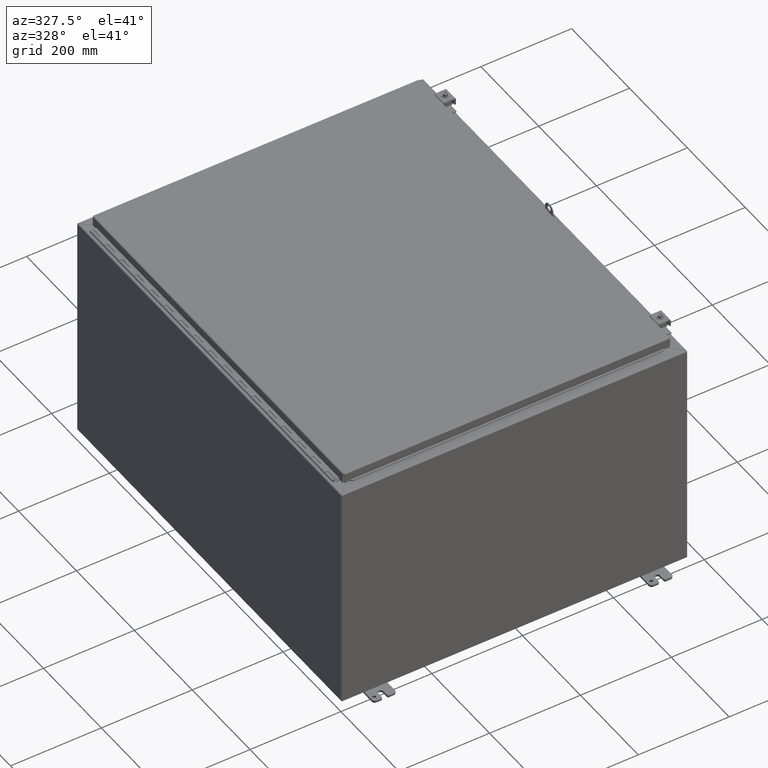
[diagram: clean part render]
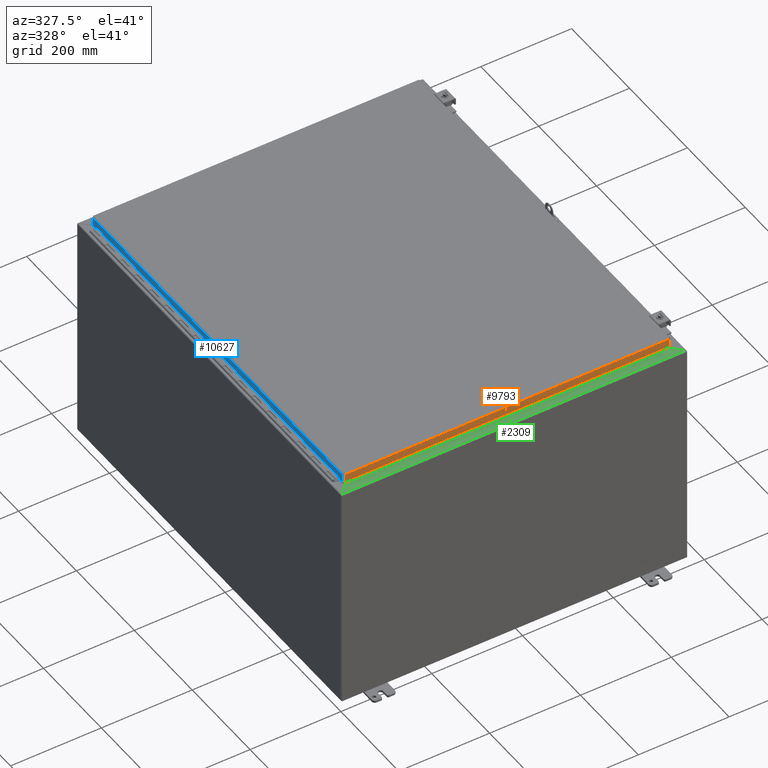
[diagram: same view with three faces highlighted in distinct colors, each labeled with its STEP entity id]
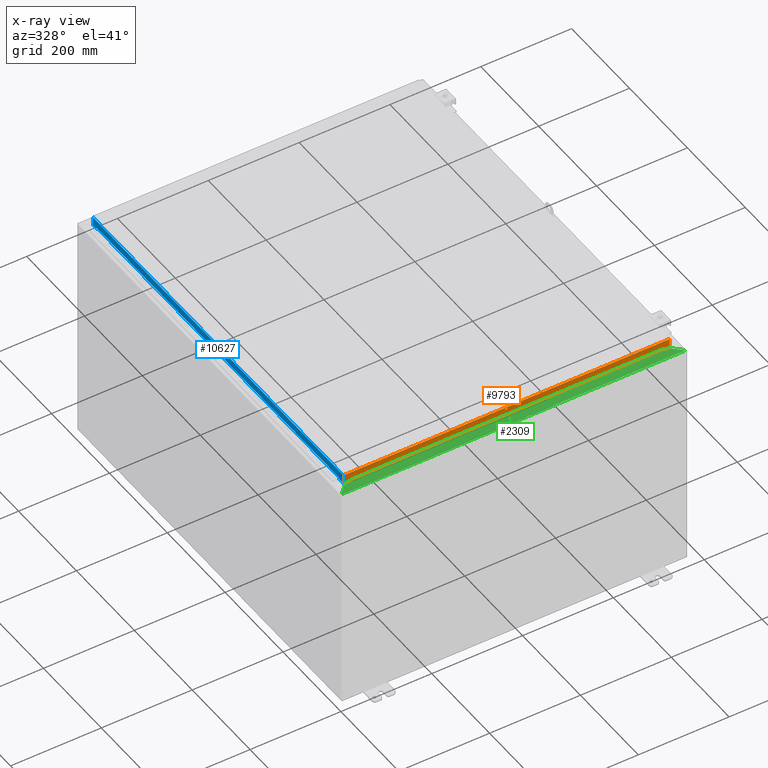
[diagram: x-ray of the same camera — body ghosted, the three highlighted faces saturated]
A machine part, auxiliary view with three faces highlighted in distinct colors.
The next image is the same camera in x-ray (body ghosted, the three faces saturated) — at least one of them is partly hidden behind the body in this view.
Their STEP definitions:

[orange] entity #9793 — the highlighted planar face has unit normal (-0, 1, -0).
#8678=CARTESIAN_POINT('',(-13.602451456543987,17.093750000000043,0.769749999999993));
#8679=VERTEX_POINT('',#8678);
#8704=CARTESIAN_POINT('',(13.602451456543964,17.093750000000046,0.769749999999993));
#8705=VERTEX_POINT('',#8704);
#8760=CARTESIAN_POINT('',(-13.602451456543985,17.093750000000043,0.769749999999993));
#8761=DIRECTION('',(1.0,0.0,0.0));
#8762=VECTOR('',#8761,27.204902913087949);
#8763=LINE('',#8760,#8762);
#8764=EDGE_CURVE('',#8679,#8705,#8763,.T.);
#9516=CARTESIAN_POINT('',(13.602451456543964,17.093750000000046,0.769549999999993));
#9517=VERTEX_POINT('',#9516);
#9524=CARTESIAN_POINT('',(13.602451456543964,17.093750000000046,0.769749999999993));
#9525=DIRECTION('',(0.0,0.0,-1.0));
#9526=VECTOR('',#9525,0.0002);
#9527=LINE('',#9524,#9526);
#9528=EDGE_CURVE('',#8705,#9517,#9527,.T.);
#9548=CARTESIAN_POINT('',(13.602651456543965,17.093750000000053,0.874999999999994));
#9549=VERTEX_POINT('',#9548);
#9556=CARTESIAN_POINT('',(13.602651456543965,17.093750000000046,0.769549999999993));
#9557=VERTEX_POINT('',#9556);
#9558=CARTESIAN_POINT('',(13.602651456543965,17.093750000000046,0.769549999999993));
#9559=DIRECTION('',(0.0,0.0,1.0));
#9560=VECTOR('',#9559,0.105450000000001);
#9561=LINE('',#9558,#9560);
#9562=EDGE_CURVE('',#9557,#9549,#9561,.T.);
#9585=CARTESIAN_POINT('',(13.602451456543964,17.093750000000043,0.769549999999993));
#9586=DIRECTION('',(1.0,0.0,0.0));
#9587=VECTOR('',#9586,0.000200000000003);
#9588=LINE('',#9585,#9587);
#9589=EDGE_CURVE('',#9517,#9557,#9588,.T.);
#9675=CARTESIAN_POINT('',(-13.602651456543988,17.093750000000043,0.769549999999993));
#9676=VERTEX_POINT('',#9675);
#9683=CARTESIAN_POINT('',(-13.602651456543988,17.09375000000005,0.874999999999994));
#9684=VERTEX_POINT('',#9683);
#9685=CARTESIAN_POINT('',(-13.602651456543988,17.093750000000053,0.874999999999994));
#9686=DIRECTION('',(0.0,0.0,-1.0));
#9687=VECTOR('',#9686,0.105450000000001);
#9688=LINE('',#9685,#9687);
#9689=EDGE_CURVE('',#9684,#9676,#9688,.T.);
#9706=CARTESIAN_POINT('',(-13.602451456543987,17.093750000000043,0.769549999999993));
#9707=VERTEX_POINT('',#9706);
#9708=CARTESIAN_POINT('',(-13.602451456543987,17.093750000000046,0.769549999999993));
#9709=DIRECTION('',(0.0,0.0,1.0));
#9710=VECTOR('',#9709,0.0002);
#9711=LINE('',#9708,#9710);
#9712=EDGE_CURVE('',#9707,#8679,#9711,.T.);
#9731=CARTESIAN_POINT('',(-13.602651456543988,17.093750000000043,0.769549999999993));
#9732=DIRECTION('',(1.0,0.0,0.0));
#9733=VECTOR('',#9732,0.000200000000001);
#9734=LINE('',#9731,#9733);
#9735=EDGE_CURVE('',#9676,#9707,#9734,.T.);
#9741=CARTESIAN_POINT('',(-0.046950708161296,17.093750000000025,0.440146161915871));
#9742=DIRECTION('',(0.0,-1.0,0.0));
#9743=DIRECTION('',(1.0,0.0,0.0));
#9744=AXIS2_PLACEMENT_3D('',#9741,#9742,#9743);
#9745=PLANE('',#9744);
#9746=ORIENTED_EDGE('',*,*,#9562,.T.);
#9747=CARTESIAN_POINT('',(14.102451456543966,17.093750000000053,0.874999999999993));
#9748=VERTEX_POINT('',#9747);
#9749=CARTESIAN_POINT('',(14.102451456543966,17.093750000000053,0.874999999999993));
#9750=DIRECTION('',(-1.0,0.0,0.0));
#9751=VECTOR('',#9750,0.4998);
#9752=LINE('',#9749,#9751);
#9753=EDGE_CURVE('',#9748,#9549,#9752,.T.);
#9754=ORIENTED_EDGE('',*,*,#9753,.F.);
#9755=CARTESIAN_POINT('',(14.102451456543966,17.093750000000004,0.105249999999996));
#9756=VERTEX_POINT('',#9755);
#9757=CARTESIAN_POINT('',(14.102451456543966,17.093750000000004,0.105249999999996));
#9758=DIRECTION('',(0.0,0.0,1.0));
#9759=VECTOR('',#9758,0.769749999999998);
#9760=LINE('',#9757,#9759);
#9761=EDGE_CURVE('',#9756,#9748,#9760,.T.);
#9762=ORIENTED_EDGE('',*,*,#9761,.F.);
#9763=CARTESIAN_POINT('',(-14.102451456543951,17.093750000000004,0.105249999999994));
#9764=VERTEX_POINT('',#9763);
#9765=CARTESIAN_POINT('',(14.102451456543962,17.093750000000004,0.10524999999999));
#9766=DIRECTION('',(-1.0,0.0,0.0));
#9767=VECTOR('',#9766,28.204902913087913);
#9768=LINE('',#9765,#9767);
#9769=EDGE_CURVE('',#9756,#9764,#9768,.T.);
#9770=ORIENTED_EDGE('',*,*,#9769,.T.);
#9771=CARTESIAN_POINT('',(-14.102451456543989,17.09375000000005,0.874999999999994));
#9772=VERTEX_POINT('',#9771);
#9773=CARTESIAN_POINT('',(-14.10245145654399,17.093750000000053,0.874999999999994));
#9774=DIRECTION('',(0.0,0.0,-1.0));
#9775=VECTOR('',#9774,0.76975);
#9776=LINE('',#9773,#9775);
#9777=EDGE_CURVE('',#9772,#9764,#9776,.T.);
#9778=ORIENTED_EDGE('',*,*,#9777,.F.);
#9779=CARTESIAN_POINT('',(-13.602651456543986,17.093750000000053,0.874999999999993));
#9780=DIRECTION('',(-1.0,0.0,0.0));
#9781=VECTOR('',#9780,0.4998);
#9782=LINE('',#9779,#9781);
#9783=EDGE_CURVE('',#9684,#9772,#9782,.T.);
#9784=ORIENTED_EDGE('',*,*,#9783,.F.);
#9785=ORIENTED_EDGE('',*,*,#9689,.T.);
#9786=ORIENTED_EDGE('',*,*,#9735,.T.);
#9787=ORIENTED_EDGE('',*,*,#9712,.T.);
#9788=ORIENTED_EDGE('',*,*,#8764,.T.);
#9789=ORIENTED_EDGE('',*,*,#9528,.T.);
#9790=ORIENTED_EDGE('',*,*,#9589,.T.);
#9791=EDGE_LOOP('',(#9746,#9754,#9762,#9770,#9778,#9784,#9785,#9786,#9787,#9788,#9789,#9790));
#9792=FACE_OUTER_BOUND('',#9791,.T.);
#9793=ADVANCED_FACE('',(#9792),#9745,.F.);

[blue] entity #10627 — the highlighted planar face has unit normal (1, 0, -0).
#7840=CARTESIAN_POINT('',(-14.187500000000027,16.515625000000011,0.749999999999995));
#7841=VERTEX_POINT('',#7840);
#7848=CARTESIAN_POINT('',(-14.187500000000025,-16.515624999999989,0.74999999999997));
#7849=VERTEX_POINT('',#7848);
#7850=CARTESIAN_POINT('',(-14.187500000000021,-16.515624999999993,0.74999999999997));
#7851=DIRECTION('',(0.0,1.0,0.0));
#7852=VECTOR('',#7851,33.03125);
#7853=LINE('',#7850,#7852);
#7854=EDGE_CURVE('',#7849,#7841,#7853,.T.);
#7879=CARTESIAN_POINT('',(-14.187500000000027,-16.515624999999989,0.874999999999972));
#7880=VERTEX_POINT('',#7879);
#7881=CARTESIAN_POINT('',(-14.187500000000025,-16.515624999999989,0.874999999999972));
#7882=DIRECTION('',(0.0,0.0,-1.0));
#7883=VECTOR('',#7882,0.125000000000003);
#7884=LINE('',#7881,#7883);
#7885=EDGE_CURVE('',#7880,#7849,#7884,.T.);
#7909=CARTESIAN_POINT('',(-14.187500000000032,16.515625000000011,0.874999999999993));
#7910=VERTEX_POINT('',#7909);
#7917=CARTESIAN_POINT('',(-14.187500000000025,16.515625000000011,0.749999999999995));
#7918=DIRECTION('',(0.0,0.0,1.0));
#7919=VECTOR('',#7918,0.124999999999998);
#7920=LINE('',#7917,#7919);
#7921=EDGE_CURVE('',#7841,#7910,#7920,.T.);
#7982=CARTESIAN_POINT('',(-14.187500000000025,-17.008701456544006,0.874999999999993));
#7983=VERTEX_POINT('',#7982);
#7984=CARTESIAN_POINT('',(-14.187500000000025,-17.008701456544003,0.874999999999993));
#7985=DIRECTION('',(0.0,1.0,0.0));
#7986=VECTOR('',#7985,0.493076456544003);
#7987=LINE('',#7984,#7986);
#7988=EDGE_CURVE('',#7983,#7880,#7987,.T.);
#9960=CARTESIAN_POINT('',(-14.187499999999996,-17.008701456543957,0.105249999999966));
#9961=VERTEX_POINT('',#9960);
#10210=CARTESIAN_POINT('',(-14.187500000000002,-17.008701456543957,0.105249999999982));
#10211=DIRECTION('',(0.0,0.0,1.0));
#10212=VECTOR('',#10211,0.769750000000012);
#10213=LINE('',#10210,#10212);
#10214=EDGE_CURVE('',#9961,#7983,#10213,.T.);
#10484=CARTESIAN_POINT('',(-14.18750000000003,17.00870145654401,0.874999999999999));
#10485=VERTEX_POINT('',#10484);
#10492=CARTESIAN_POINT('',(-14.187500000000025,16.515625000000014,0.874999999999993));
#10493=DIRECTION('',(0.0,1.0,0.0));
#10494=VECTOR('',#10493,0.493076456543989);
#10495=LINE('',#10492,#10494);
#10496=EDGE_CURVE('',#7910,#10485,#10495,.T.);
#10523=CARTESIAN_POINT('',(-14.187500000000002,17.008701456543957,0.105250000000004));
#10524=VERTEX_POINT('',#10523);
#10531=CARTESIAN_POINT('',(-14.18750000000003,17.00870145654401,0.874999999999999));
#10532=DIRECTION('',(0.0,0.0,-1.0));
#10533=VECTOR('',#10532,0.769750000000009);
#10534=LINE('',#10531,#10533);
#10535=EDGE_CURVE('',#10485,#10524,#10534,.T.);
#10593=CARTESIAN_POINT('',(-14.187500000000005,17.008701456543957,0.105249999999993));
#10594=DIRECTION('',(0.0,-1.0,0.0));
#10595=VECTOR('',#10594,34.017402913087921);
#10596=LINE('',#10593,#10595);
#10597=EDGE_CURVE('',#10524,#9961,#10596,.T.);
#10612=CARTESIAN_POINT('',(-14.187500000000012,5.396255E-017,0.440008743193604));
#10613=DIRECTION('',(1.0,0.0,0.0));
#10614=DIRECTION('',(0.0,0.0,-1.0));
#10615=AXIS2_PLACEMENT_3D('',#10612,#10613,#10614);
#10616=PLANE('',#10615);
#10617=ORIENTED_EDGE('',*,*,#7921,.T.);
#10618=ORIENTED_EDGE('',*,*,#10496,.T.);
#10619=ORIENTED_EDGE('',*,*,#10535,.T.);
#10620=ORIENTED_EDGE('',*,*,#10597,.T.);
#10621=ORIENTED_EDGE('',*,*,#10214,.T.);
#10622=ORIENTED_EDGE('',*,*,#7988,.T.);
#10623=ORIENTED_EDGE('',*,*,#7885,.T.);
#10624=ORIENTED_EDGE('',*,*,#7854,.T.);
#10625=EDGE_LOOP('',(#10617,#10618,#10619,#10620,#10621,#10622,#10623,#10624));
#10626=FACE_OUTER_BOUND('',#10625,.T.);
#10627=ADVANCED_FACE('',(#10626),#10616,.F.);

[green] entity #2309 — the highlighted planar face has unit normal (0, -0, -1).
#1782=CARTESIAN_POINT('',(28.699567696899827,19.963000000000058,1.269749999999996));
#1783=VERTEX_POINT('',#1782);
#1842=CARTESIAN_POINT('',(1.226432303100167,19.963000000000058,1.269749999999996));
#1843=VERTEX_POINT('',#1842);
#1913=CARTESIAN_POINT('',(29.864075840854607,19.963000000000001,0.105249999999993));
#1914=VERTEX_POINT('',#1913);
#1921=CARTESIAN_POINT('',(28.699567696899827,19.963000000000083,1.269749999999996));
#1922=DIRECTION('',(0.70710925375651,-4.961718E-014,-0.707104308607939));
#1923=VECTOR('',#1922,1.646857452039191);
#1924=LINE('',#1921,#1923);
#1925=EDGE_CURVE('',#1783,#1914,#1924,.T.);
#1937=CARTESIAN_POINT('',(0.061924159145384,19.963000000000001,0.105249999999993));
#1938=VERTEX_POINT('',#1937);
#1939=CARTESIAN_POINT('',(0.061924159145385,19.963000000000001,0.105249999999992));
#1940=DIRECTION('',(0.70710925375651,4.961718E-014,0.707104308607939));
#1941=VECTOR('',#1940,1.646857452039193);
#1942=LINE('',#1939,#1941);
#1943=EDGE_CURVE('',#1938,#1843,#1942,.T.);
#2288=CARTESIAN_POINT('',(14.962999999999997,19.962999999999312,-9.843683887633461));
#2289=DIRECTION('',(0.0,-1.0,0.0));
#2290=DIRECTION('',(1.0,0.0,0.0));
#2291=AXIS2_PLACEMENT_3D('',#2288,#2289,#2290);
#2292=PLANE('',#2291);
#2293=ORIENTED_EDGE('',*,*,#1925,.T.);
#2294=CARTESIAN_POINT('',(29.864075840854607,19.963000000000001,0.105249999999993));
#2295=DIRECTION('',(-1.0,0.0,0.0));
#2296=VECTOR('',#2295,29.802151681709223);
#2297=LINE('',#2294,#2296);
#2298=EDGE_CURVE('',#1914,#1938,#2297,.T.);
#2299=ORIENTED_EDGE('',*,*,#2298,.T.);
#2300=ORIENTED_EDGE('',*,*,#1943,.T.);
#2301=CARTESIAN_POINT('',(1.226432303100168,19.963000000000058,1.269749999999996));
#2302=DIRECTION('',(1.0,0.0,0.0));
#2303=VECTOR('',#2302,27.473135393799659);
#2304=LINE('',#2301,#2303);
#2305=EDGE_CURVE('',#1843,#1783,#2304,.T.);
#2306=ORIENTED_EDGE('',*,*,#2305,.T.);
#2307=EDGE_LOOP('',(#2293,#2299,#2300,#2306));
#2308=FACE_OUTER_BOUND('',#2307,.T.);
#2309=ADVANCED_FACE('',(#2308),#2292,.F.);